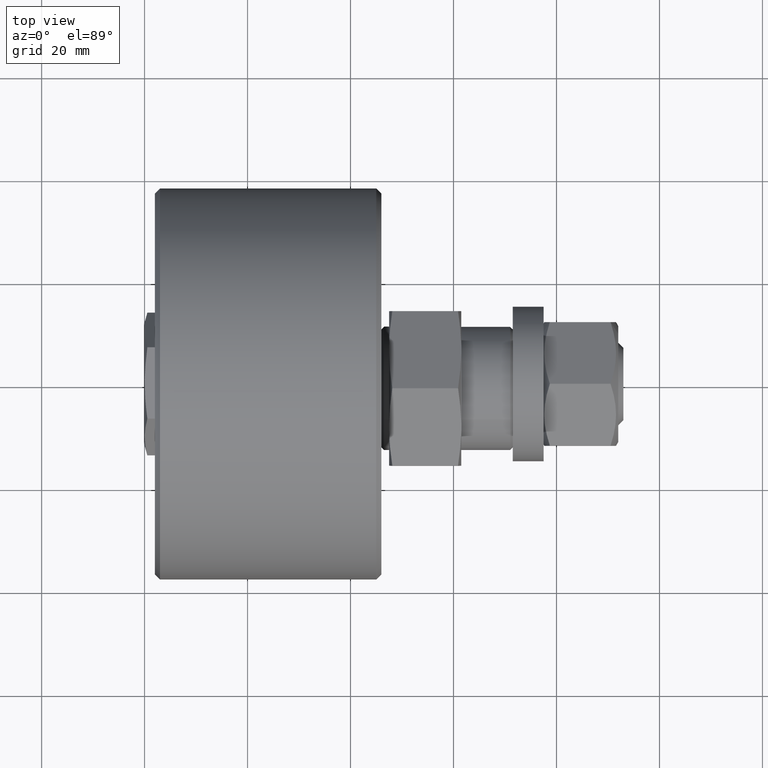
[diagram: clean part render]
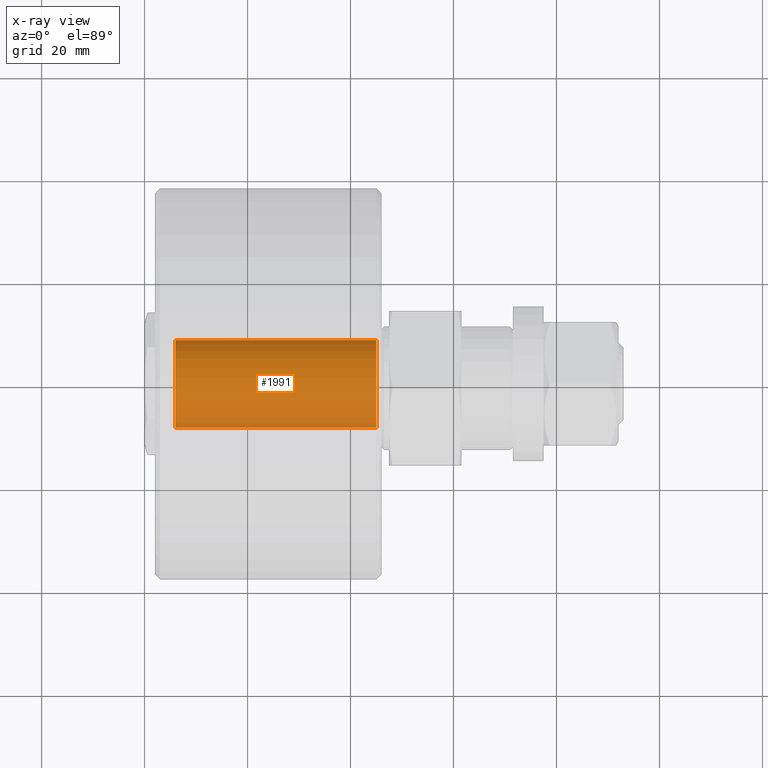
[diagram: x-ray — body ghosted, one internal face saturated and labeled with its STEP entity id]
A machine part, top view, then the same camera in x-ray: the body is ghosted and one INTERNAL B-rep face — a face not visible from any outside direction — is saturated and labeled: STEP entity #1991.
In plain terms, the highlighted cylindrical surface (bore or boss wall) has radius 8.5 mm, axis along (1, 0, 0).
Its self-contained STEP definition (entity closure, byte-faithful):
#273=CYLINDRICAL_SURFACE('',#2286,8.5);
#304=FACE_OUTER_BOUND('',#420,.T.);
#420=EDGE_LOOP('',(#1397,#1398,#1399,#1400));
#571=LINE('',#3200,#645);
#645=VECTOR('',#2587,8.5);
#709=CIRCLE('',#2285,8.5);
#710=CIRCLE('',#2287,8.5);
#851=VERTEX_POINT('',#3195);
#852=VERTEX_POINT('',#3198);
#1069=EDGE_CURVE('',#851,#851,#709,.T.);
#1070=EDGE_CURVE('',#852,#852,#710,.T.);
#1071=EDGE_CURVE('',#852,#851,#571,.T.);
#1397=ORIENTED_EDGE('',*,*,#1070,.F.);
#1398=ORIENTED_EDGE('',*,*,#1071,.T.);
#1399=ORIENTED_EDGE('',*,*,#1069,.T.);
#1400=ORIENTED_EDGE('',*,*,#1071,.F.);
#1991=ADVANCED_FACE('',(#304),#273,.T.);
#2285=AXIS2_PLACEMENT_3D('',#3196,#2581,#2582);
#2286=AXIS2_PLACEMENT_3D('',#3197,#2583,#2584);
#2287=AXIS2_PLACEMENT_3D('',#3199,#2585,#2586);
#2581=DIRECTION('center_axis',(1.,0.,0.));
#2582=DIRECTION('ref_axis',(0.,1.,0.));
#2583=DIRECTION('center_axis',(1.,0.,0.));
#2584=DIRECTION('ref_axis',(0.,1.,0.));
#2585=DIRECTION('center_axis',(1.,0.,0.));
#2586=DIRECTION('ref_axis',(0.,1.,0.));
#2587=DIRECTION('',(-1.,0.,0.));
#3195=CARTESIAN_POINT('',(6.,-8.5,-1.04094977927525E-15));
#3196=CARTESIAN_POINT('Origin',(6.,0.,0.));
#3197=CARTESIAN_POINT('Origin',(25.5,0.,0.));
#3198=CARTESIAN_POINT('',(45.,-8.5,-1.04094977927525E-15));
#3199=CARTESIAN_POINT('Origin',(45.,0.,0.));
#3200=CARTESIAN_POINT('',(25.5,-8.5,-1.04094977927525E-15));